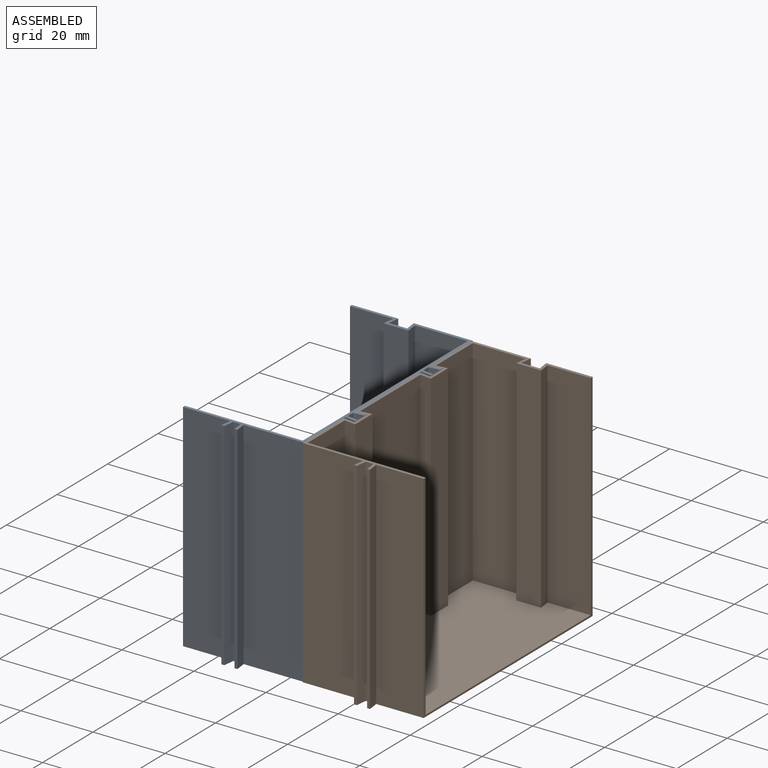
[diagram: assembled view]
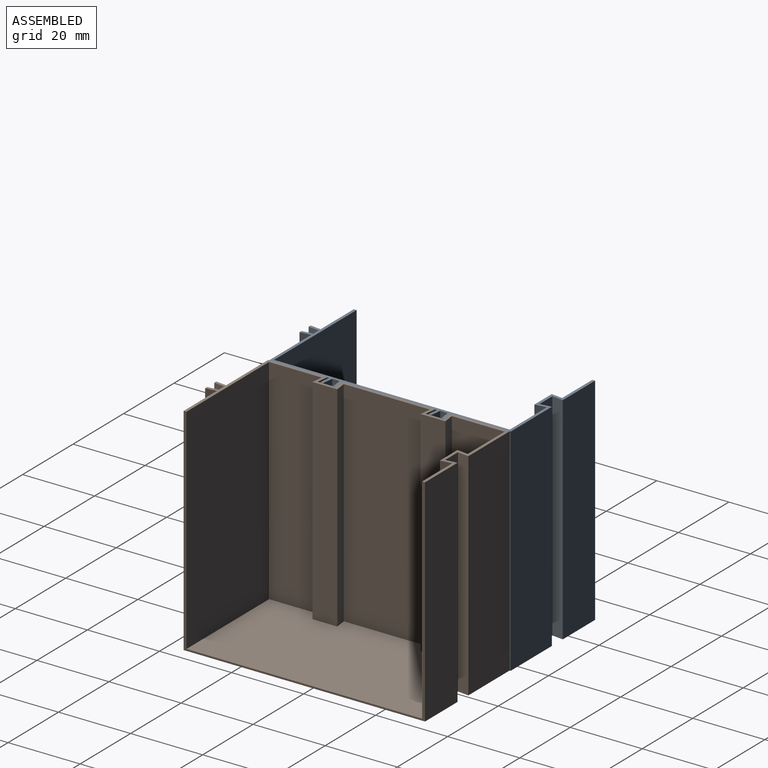
[diagram: assembled view, second angle]
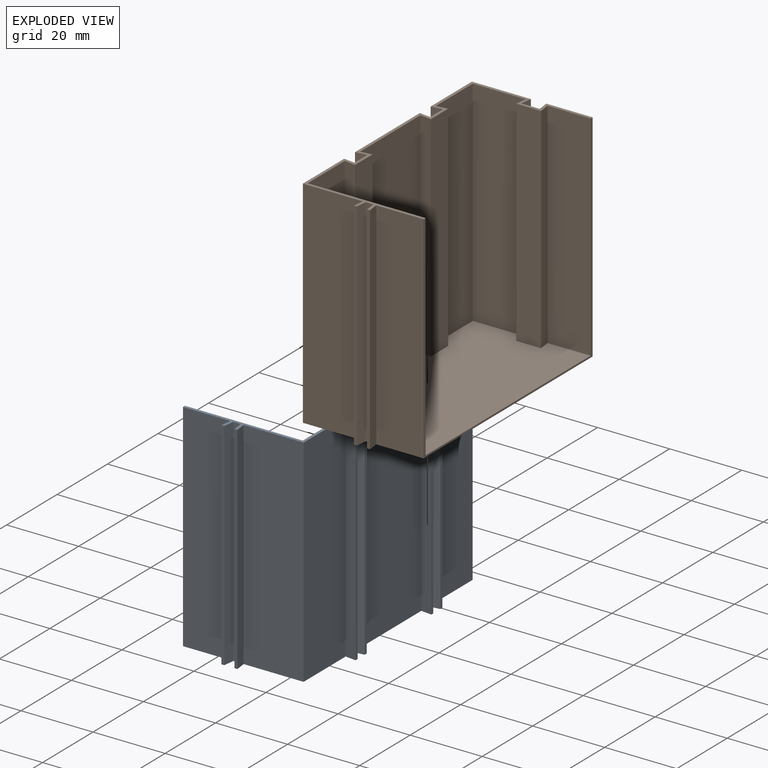
[diagram: exploded view]
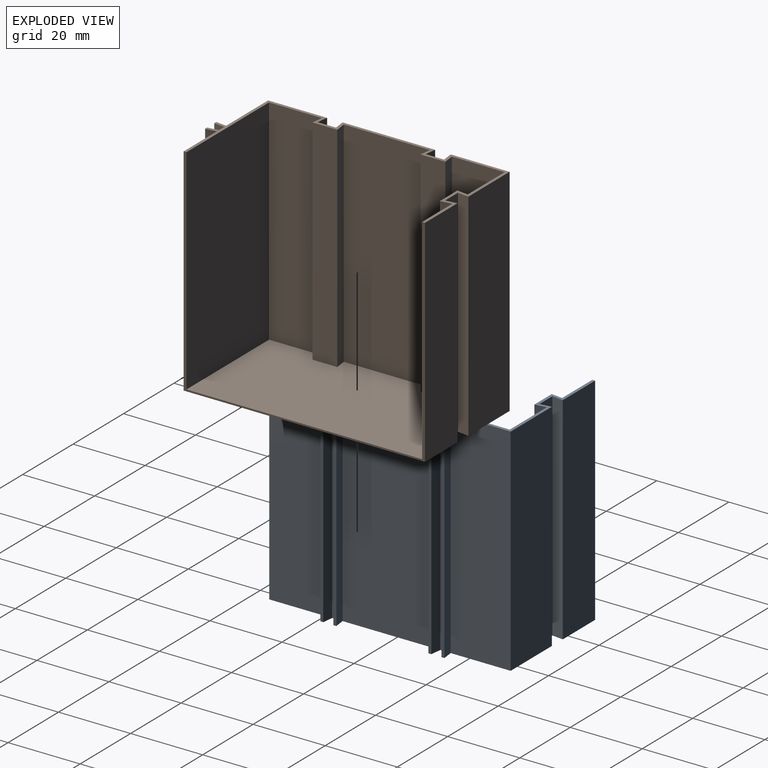
[diagram: exploded view, second angle]
ASSEMBLY  parts=2 mates=3
PART A: 42 faces, bbox 36.5x70x60 mm
  f0: plane 60x0.81mm, normal (0,-1,0), area 48.4mm2, adj f1,f27,f39,f40
  f1: plane 60x3mm, normal (0.99,-0.12,0), area 181.4mm2, adj f0,f2,f39,f40
  f2: plane 60x2.09mm, normal (0,-1,0), area 125.3mm2, adj f1,f3,f39,f40
  f3: plane 60x3mm, normal (-0.99,-0.12,0), area 181.4mm2, adj f2,f4,f39,f40
  f4: plane 60x0.81mm, normal (0,-1,0), area 48.4mm2, adj f3,f5,f39,f40
  f5: plane 60x3mm, normal (0.99,0.12,0), area 181.4mm2, adj f4,f6,f39,f40
  f6: plane 60x16.65mm, normal (0,-1,0), area 999mm2, adj f5,f7,f39,f40
  f7: plane 60x16.65mm, normal (1,0,0), area 999mm2, adj f6,f8,f39,f40
  f8: plane 60x3mm, normal (-0.12,-0.99,0), area 181.4mm2, adj f7,f9,f39,f40
  f9: plane 60x0.81mm, normal (1,0,0), area 48.4mm2, adj f8,f10,f39,f40
  f10: plane 60x3mm, normal (0.12,0.99,0), area 181.4mm2, adj f9,f11,f39,f40
  f11: plane 60x2.09mm, normal (1,0,0), area 125.3mm2, adj f10,f12,f39,f40
  f12: plane 60x3mm, normal (0.12,-0.99,0), area 181.4mm2, adj f11,f13,f39,f40
  f13: plane 60x0.81mm, normal (1,0,0), area 48.4mm2, adj f12,f14,f39,f40
  f14: plane 60x3mm, normal (-0.12,0.99,0), area 181.4mm2, adj f13,f15,f39,f40
  f15: plane 60x26.3mm, normal (1,0,0), area 1578mm2, adj f14,f16,f39,f40
  f16: plane 60x3mm, normal (-0.12,-0.99,0), area 181.4mm2, adj f15,f17,f39,f40
  f17: plane 60x0.81mm, normal (1,0,0), area 48.4mm2, adj f16,f18,f39,f40
  f18: plane 60x3mm, normal (0.12,0.99,0), area 181.4mm2, adj f17,f19,f39,f40
  f19: plane 60x2.09mm, normal (1,0,0), area 125.3mm2, adj f18,f20,f39,f40
  f20: plane 60x3mm, normal (0.12,-0.99,0), area 181.4mm2, adj f19,f21,f39,f40
  f21: plane 60x0.81mm, normal (1,0,0), area 48.4mm2, adj f20,f22,f39,f40
  f22: plane 60x3mm, normal (-0.12,0.99,0), area 181.4mm2, adj f21,f23,f39,f40
  f23: plane 60x16.65mm, normal (1,0,0), area 999mm2, adj f22,f24,f39,f40
  f24: plane 60x16.35mm, normal (0,1,0), area 981mm2, adj f23,f25,f39,f40
  f25: plane 60x3.15mm, normal (-0.99,-0.12,0), area 190.4mm2, adj f24,f26,f39,f40
  f26: plane 60x5.07mm, normal (0,1,0), area 304.4mm2, adj f25,f28,f39,f40
  f27: plane 60x3mm, normal (-0.99,0.12,0), area 181.4mm2, adj f0,f38,f39,f40
  f28: plane 60x3.15mm, normal (0.99,-0.12,0), area 190.4mm2, adj f26,f37,f39,f40
  f29: plane 59.5x3.15mm, normal (-0.99,0.12,0), area 188.8mm2, adj f30,f34,f35,f40
  f30: plane 59.5x6.88mm, normal (0,-1,0), area 409.5mm2, adj f29,f31,f34,f40
  f31: plane 59.5x3.15mm, normal (0.99,0.12,0), area 188.8mm2, adj f30,f32,f34,f40
  f32: plane 59.5x14.65mm, normal (0,-1,0), area 871.4mm2, adj f31,f33,f34,f40
  f33: plane 65.4x59.5mm, normal (-1,0,0), area 3891.3mm2, adj f32,f34,f36,f40
  f34: plane 65.4x32.7mm, normal (0,0,1), area 2118.1mm2, adj f29,f30,f31,f32,f33,f35,f36,f41
  f35: plane 59.5x11.95mm, normal (0,-1,0), area 710.8mm2, adj f29,f34,f40,f41
  f36: plane 59.5x32.7mm, normal (0,1,0), area 1945.6mm2, adj f33,f34,f40,f41
  f37: plane 60x12.85mm, normal (0,1,0), area 771mm2, adj f28,f39,f40,f41
  f38: plane 60x13.15mm, normal (0,-1,0), area 789mm2, adj f27,f39,f40,f41
  f39: plane 70x36.5mm, normal (0,0,-1), area 2244.2mm2, adj f0,f1,f2,f3,f4,f5,f6,f7
  f40: plane 70x36.5mm, normal (0,0,1), area 126.1mm2, adj f0,f1,f2,f3,f4,f5,f6,f7
  f41: plane 67x60mm, normal (-1,0,0), area 128.7mm2, adj f34,f35,f36,f37,f38,f39,f40
PART B: 42 faces, bbox 33.5x70x60 mm
  f0: plane 70x33.5mm, normal (0,0,1), area 127.8mm2, adj f2,f3,f4,f5,f7,f8,f9,f10
  f1: plane 70x33.5mm, normal (0,0,-1), area 2205mm2, adj f2,f3,f7,f8,f9,f10,f11,f12
  f2: plane 60x13.15mm, normal (0,-1,0), area 789mm2, adj f0,f1,f9,f41
  f3: plane 60x12.85mm, normal (0,1,0), area 771mm2, adj f0,f1,f10,f41
  f4: plane 59.5x32.7mm, normal (0,1,0), area 1945.6mm2, adj f0,f6,f38,f41
  f5: plane 59.5x11.95mm, normal (0,-1,0), area 710.8mm2, adj f0,f6,f26,f41
  f6: plane 65.4x32.7mm, normal (0,0,1), area 2077.2mm2, adj f4,f5,f26,f27,f28,f29,f30,f31
  f7: plane 60x0.81mm, normal (0,-1,0), area 48.4mm2, adj f0,f1,f24,f39
  f8: plane 60x3mm, normal (-0.99,-0.12,0), area 181.4mm2, adj f0,f1,f25,f40
  f9: plane 60x3mm, normal (0.99,0.12,0), area 181.4mm2, adj f0,f1,f2,f25
  f10: plane 60x3.15mm, normal (-0.99,-0.12,0), area 190.4mm2, adj f0,f1,f3,f11
  f11: plane 60x5.07mm, normal (0,1,0), area 304.4mm2, adj f0,f1,f10,f12
  f12: plane 60x3.15mm, normal (0.99,-0.12,0), area 190.4mm2, adj f0,f1,f11,f13
  f13: plane 60x16.35mm, normal (0,1,0), area 981mm2, adj f0,f1,f12,f14
  f14: plane 60x16.35mm, normal (-1,0,0), area 981mm2, adj f0,f1,f13,f15
  f15: plane 60x3.15mm, normal (0.12,-0.99,0), area 190.4mm2, adj f0,f1,f14,f16
  f16: plane 60x5.07mm, normal (-1,0,0), area 304.4mm2, adj f0,f1,f15,f17
  f17: plane 60x3.15mm, normal (0.12,0.99,0), area 190.4mm2, adj f0,f1,f16,f18
  f18: plane 60x25.7mm, normal (-1,0,0), area 1542mm2, adj f0,f1,f17,f19
  f19: plane 60x3.15mm, normal (0.12,-0.99,0), area 190.4mm2, adj f0,f1,f18,f20
  f20: plane 60x5.07mm, normal (-1,0,0), area 304.4mm2, adj f0,f1,f19,f21
  f21: plane 60x3.15mm, normal (0.12,0.99,0), area 190.4mm2, adj f0,f1,f20,f22
  f22: plane 60x16.35mm, normal (-1,0,0), area 981mm2, adj f0,f1,f21,f23
  f23: plane 60x16.65mm, normal (0,-1,0), area 999mm2, adj f0,f1,f22,f24
  f24: plane 60x3mm, normal (-0.99,0.12,0), area 181.4mm2, adj f0,f1,f7,f23
  f25: plane 60x0.81mm, normal (0,-1,0), area 48.4mm2, adj f0,f1,f8,f9
  f26: plane 59.5x3.15mm, normal (0.99,0.12,0), area 188.8mm2, adj f0,f5,f6,f27
  f27: plane 59.5x6.88mm, normal (0,-1,0), area 409.5mm2, adj f0,f6,f26,f28
  f28: plane 59.5x3.15mm, normal (-0.99,0.12,0), area 188.8mm2, adj f0,f6,f27,f29
  f29: plane 59.5x14.65mm, normal (0,-1,0), area 871.4mm2, adj f0,f6,f28,f30
  f30: plane 59.5x14.65mm, normal (1,0,0), area 871.4mm2, adj f0,f6,f29,f31
  f31: plane 59.5x3.15mm, normal (-0.12,0.99,0), area 188.8mm2, adj f0,f6,f30,f32
  f32: plane 59.5x6.88mm, normal (1,0,0), area 409.5mm2, adj f0,f6,f31,f33
  f33: plane 59.5x3.15mm, normal (-0.12,-0.99,0), area 188.8mm2, adj f0,f6,f32,f34
  f34: plane 59.5x23.89mm, normal (1,0,0), area 1421.5mm2, adj f0,f6,f33,f35
  f35: plane 59.5x3.15mm, normal (-0.12,0.99,0), area 188.8mm2, adj f0,f6,f34,f36
  f36: plane 59.5x6.88mm, normal (1,0,0), area 409.5mm2, adj f0,f6,f35,f37
  f37: plane 59.5x3.15mm, normal (-0.12,-0.99,0), area 188.8mm2, adj f0,f6,f36,f38
  f38: plane 59.5x14.65mm, normal (1,0,0), area 871.4mm2, adj f0,f4,f6,f37
  f39: plane 60x3mm, normal (0.99,-0.12,0), area 181.4mm2, adj f0,f1,f7,f40
  f40: plane 60x2.09mm, normal (0,-1,0), area 125.3mm2, adj f0,f1,f8,f39
  f41: plane 67x60mm, normal (1,0,0), area 128.7mm2, adj f0,f1,f2,f3,f4,f5,f6
PLACE A t=(-7.65,60.07,-45.07)mm fixed
PLACE B t=(59.35,59.77,-45.07)mm
MATE planar A.f39 <-> B.f1  axis (0,0,-1) through (9.19,59.79,-45.07)mm
MATE planar A.f15 <-> B.f18  axis (1,0,0) through (25.85,60.07,-15.07)mm
MATE planar B.f19 <-> A.f14  axis (0.12,-0.99,0) through (27.43,47.12,-15.07)mm
